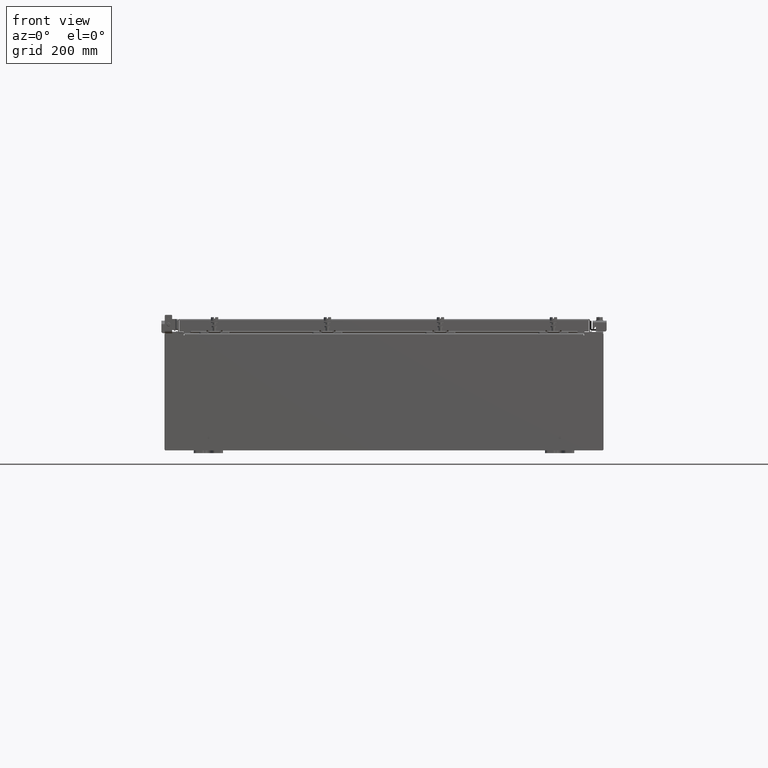
[diagram: clean part render]
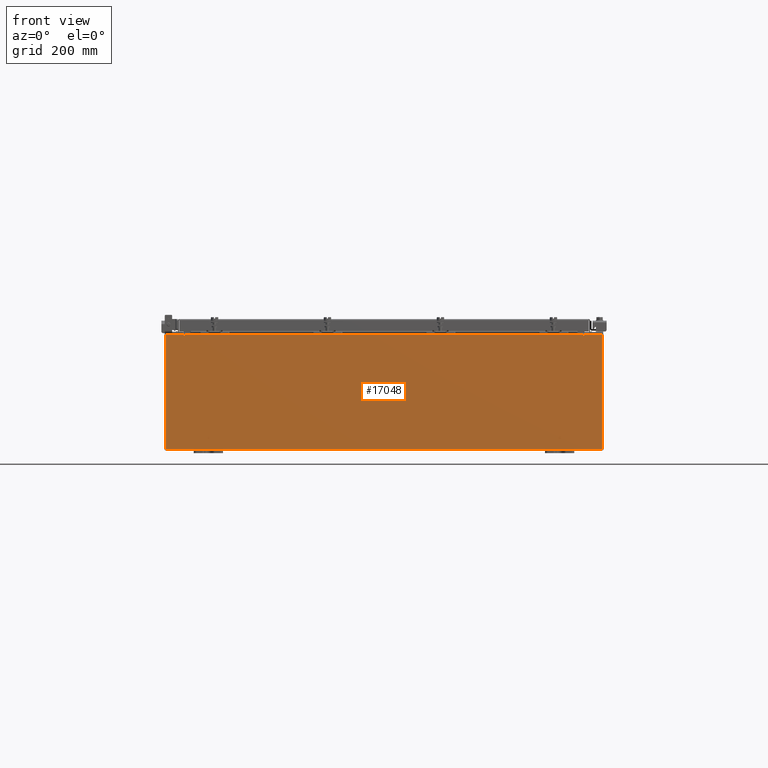
[diagram: same view with one face highlighted and labeled with its STEP entity id]
A machine part, front view. The second image highlights one B-rep face of the part: STEP entity #17048.
In plain terms, the highlighted planar face has unit normal (0, 1, -0).
Its self-contained STEP definition (entity closure, byte-faithful):
#305 = DIRECTION ( 'NONE',  ( 1.000000000000000000, 5.376446204297056400E-017, 1.665334536937734800E-016 ) ) ;
#422 = CIRCLE ( 'NONE', #21617, 0.01867499999999949400 ) ;
#449 = ORIENTED_EDGE ( 'NONE', *, *, #4674, .T. ) ;
#537 = LINE ( 'NONE', #17800, #15061 ) ;
#1232 = DIRECTION ( 'NONE',  ( -4.357226125769382300E-014, 3.355183535620637000E-017, -1.000000000000000000 ) ) ;
#1581 = VECTOR ( 'NONE', #17354, 39.37007874015748100 ) ;
#1975 = ORIENTED_EDGE ( 'NONE', *, *, #9718, .F. ) ;
#1996 = VECTOR ( 'NONE', #17200, 39.37007874015748100 ) ;
#2044 = DIRECTION ( 'NONE',  ( 5.376446204297056400E-017, 1.000000000000000000, -3.355183535620870000E-017 ) ) ;
#2347 = VERTEX_POINT ( 'NONE', #21181 ) ;
#2496 = LINE ( 'NONE', #11623, #11954 ) ;
#2510 = CARTESIAN_POINT ( 'NONE',  ( 13.63720000000000400, 0.0000000000000000000, 3.874950000000001900 ) ) ;
#3250 = CARTESIAN_POINT ( 'NONE',  ( -13.63719999999999600, 0.0000000000000000000, 3.874949999999997500 ) ) ;
#3766 = EDGE_CURVE ( 'NONE', #12182, #20559, #11975, .T. ) ;
#3948 = DIRECTION ( 'NONE',  ( -1.665334536937734800E-016, 3.355183535620870000E-017, -1.000000000000000000 ) ) ;
#3970 = CARTESIAN_POINT ( 'NONE',  ( 13.63720000000000400, 0.0000000000000000000, 1.639108796198557900E-015 ) ) ;
#3978 = VECTOR ( 'NONE', #3948, 39.37007874015748100 ) ;
#4128 = CARTESIAN_POINT ( 'NONE',  ( 14.92530000000000200, 0.0000000000000000000, 3.925300000000001800 ) ) ;
#4161 = LINE ( 'NONE', #7021, #11835 ) ;
#4238 = EDGE_CURVE ( 'NONE', #19336, #19671, #2496, .T. ) ;
#4674 = EDGE_CURVE ( 'NONE', #13302, #5848, #18765, .T. ) ;
#4871 = DIRECTION ( 'NONE',  ( -5.376446204297057600E-017, -1.000000000000000000, -3.355183535620869400E-017 ) ) ;
#5150 = CARTESIAN_POINT ( 'NONE',  ( -14.92529999999999800, 0.0000000000000000000, 3.925299999999997800 ) ) ;
#5669 = VECTOR ( 'NONE', #21916, 39.37007874015748100 ) ;
#5848 = VERTEX_POINT ( 'NONE', #16299 ) ;
#6133 = CARTESIAN_POINT ( 'NONE',  ( 14.92530000000000200, 0.0000000000000000000, -3.925299999999996900 ) ) ;
#6248 = DIRECTION ( 'NONE',  ( 1.000000000000000000, 5.376446204297056400E-017, 1.665334536937734800E-016 ) ) ;
#7021 = CARTESIAN_POINT ( 'NONE',  ( 13.67454999999983300, 0.0000000000000000000, -5.911719058289465700E-013 ) ) ;
#7117 = VERTEX_POINT ( 'NONE', #3250 ) ;
#7813 = ORIENTED_EDGE ( 'NONE', *, *, #15210, .T. ) ;
#7950 = ORIENTED_EDGE ( 'NONE', *, *, #11029, .F. ) ;
#8235 = CARTESIAN_POINT ( 'NONE',  ( -13.65587499999999600, 0.0000000000000000000, 3.874949999999997500 ) ) ;
#8236 = ORIENTED_EDGE ( 'NONE', *, *, #16728, .F. ) ;
#8328 = CARTESIAN_POINT ( 'NONE',  ( 13.65587500000000200, 0.0000000000000000000, 3.874950000000001900 ) ) ;
#8567 = CARTESIAN_POINT ( 'NONE',  ( -13.63719999999999600, 0.0000000000000000000, 3.912299999999997400 ) ) ;
#9318 = ORIENTED_EDGE ( 'NONE', *, *, #19740, .T. ) ;
#9594 = DIRECTION ( 'NONE',  ( 0.0000000000000000000, 3.355183535620870000E-017, -1.000000000000000000 ) ) ;
#9718 = EDGE_CURVE ( 'NONE', #23781, #12182, #4161, .T. ) ;
#9747 = VERTEX_POINT ( 'NONE', #22131 ) ;
#9769 = CARTESIAN_POINT ( 'NONE',  ( 13.67455000000000400, 0.0000000000000000000, 3.925300000000001800 ) ) ;
#10124 = DIRECTION ( 'NONE',  ( 0.0000000000000000000, 3.355183535620870000E-017, -1.000000000000000000 ) ) ;
#10479 = CARTESIAN_POINT ( 'NONE',  ( 0.0000000000000000000, 0.0000000000000000000, 0.0000000000000000000 ) ) ;
#10584 = CARTESIAN_POINT ( 'NONE',  ( -13.67454999999999500, 0.0000000000000000000, -2.731847993664263200E-015 ) ) ;
#10776 = CARTESIAN_POINT ( 'NONE',  ( 13.67455000000000200, 0.0000000000000000000, 3.874950000000001900 ) ) ;
#10778 = EDGE_LOOP ( 'NONE', ( #7950, #19917, #22525, #20871, #8236, #14805, #1975, #11351, #9318, #13644, #449, #7813 ) ) ;
#11029 = EDGE_CURVE ( 'NONE', #9747, #14965, #15771, .T. ) ;
#11030 = LINE ( 'NONE', #4128, #1581 ) ;
#11133 = VECTOR ( 'NONE', #6248, 39.37007874015748100 ) ;
#11351 = ORIENTED_EDGE ( 'NONE', *, *, #12755, .T. ) ;
#11623 = CARTESIAN_POINT ( 'NONE',  ( -13.63719999999999800, 0.0000000000000000000, 3.912299999999997400 ) ) ;
#11835 = VECTOR ( 'NONE', #1232, 39.37007874015748100 ) ;
#11954 = VECTOR ( 'NONE', #305, 39.37007874015748100 ) ;
#11975 = CIRCLE ( 'NONE', #24039, 0.01867499999999949400 ) ;
#12147 = CARTESIAN_POINT ( 'NONE',  ( -14.92529999999999800, 0.0000000000000000000, -3.925300000000002700 ) ) ;
#12182 = VERTEX_POINT ( 'NONE', #10776 ) ;
#12380 = PLANE ( 'NONE',  #16681 ) ;
#12755 = EDGE_CURVE ( 'NONE', #23781, #2347, #15683, .T. ) ;
#13291 = EDGE_CURVE ( 'NONE', #15868, #13302, #537, .T. ) ;
#13302 = VERTEX_POINT ( 'NONE', #12147 ) ;
#13366 = CARTESIAN_POINT ( 'NONE',  ( -13.63719999999999600, 0.0000000000000000000, -2.185478394931410600E-015 ) ) ;
#13644 = ORIENTED_EDGE ( 'NONE', *, *, #13291, .T. ) ;
#13717 = VECTOR ( 'NONE', #20549, 39.37007874015748100 ) ;
#14590 = DIRECTION ( 'NONE',  ( 1.000000000000000000, 5.376446204297056400E-017, 1.665334536937734800E-016 ) ) ;
#14805 = ORIENTED_EDGE ( 'NONE', *, *, #3766, .F. ) ;
#14965 = VERTEX_POINT ( 'NONE', #16474 ) ;
#15061 = VECTOR ( 'NONE', #15904, 39.37007874015748100 ) ;
#15082 = VECTOR ( 'NONE', #14590, 39.37007874015748100 ) ;
#15210 = EDGE_CURVE ( 'NONE', #5848, #14965, #21208, .T. ) ;
#15645 = FACE_OUTER_BOUND ( 'NONE', #10778, .T. ) ;
#15683 = LINE ( 'NONE', #5150, #15082 ) ;
#15771 = LINE ( 'NONE', #10584, #5669 ) ;
#15868 = VERTEX_POINT ( 'NONE', #6133 ) ;
#15904 = DIRECTION ( 'NONE',  ( -1.000000000000000000, -5.376446204297056400E-017, -1.665334536937734800E-016 ) ) ;
#16299 = CARTESIAN_POINT ( 'NONE',  ( -14.92529999999999800, 0.0000000000000000000, 3.925299999999997800 ) ) ;
#16474 = CARTESIAN_POINT ( 'NONE',  ( -13.67454999999999500, 0.0000000000000000000, 3.925299999999997800 ) ) ;
#16524 = LINE ( 'NONE', #3970, #1996 ) ;
#16681 = AXIS2_PLACEMENT_3D ( 'NONE', #10479, #4871, #18108 ) ;
#16728 = EDGE_CURVE ( 'NONE', #20559, #19671, #16524, .T. ) ;
#17048 = ADVANCED_FACE ( 'NONE', ( #15645 ), #12380, .F. ) ;
#17200 = DIRECTION ( 'NONE',  ( 1.665334536937734800E-016, -3.355183535620870000E-017, 1.000000000000000000 ) ) ;
#17354 = DIRECTION ( 'NONE',  ( -1.665334536937734800E-016, 3.355183535620870000E-017, -1.000000000000000000 ) ) ;
#17584 = CARTESIAN_POINT ( 'NONE',  ( -14.92529999999999800, 0.0000000000000000000, 3.925299999999997800 ) ) ;
#17800 = CARTESIAN_POINT ( 'NONE',  ( -14.92529999999999800, 0.0000000000000000000, -3.925300000000002700 ) ) ;
#18108 = DIRECTION ( 'NONE',  ( -1.665334536937734800E-016, 3.355183535620870000E-017, -1.000000000000000000 ) ) ;
#18765 = LINE ( 'NONE', #22007, #13717 ) ;
#19336 = VERTEX_POINT ( 'NONE', #8567 ) ;
#19668 = LINE ( 'NONE', #13366, #3978 ) ;
#19671 = VERTEX_POINT ( 'NONE', #20680 ) ;
#19740 = EDGE_CURVE ( 'NONE', #2347, #15868, #11030, .T. ) ;
#19917 = ORIENTED_EDGE ( 'NONE', *, *, #20550, .F. ) ;
#20549 = DIRECTION ( 'NONE',  ( 1.665334536937734800E-016, -3.355183535620870000E-017, 1.000000000000000000 ) ) ;
#20550 = EDGE_CURVE ( 'NONE', #7117, #9747, #422, .T. ) ;
#20559 = VERTEX_POINT ( 'NONE', #2510 ) ;
#20680 = CARTESIAN_POINT ( 'NONE',  ( 13.63720000000000400, 0.0000000000000000000, 3.912300000000001900 ) ) ;
#20871 = ORIENTED_EDGE ( 'NONE', *, *, #4238, .T. ) ;
#21181 = CARTESIAN_POINT ( 'NONE',  ( 14.92530000000000200, 0.0000000000000000000, 3.925300000000001800 ) ) ;
#21208 = LINE ( 'NONE', #17584, #11133 ) ;
#21429 = DIRECTION ( 'NONE',  ( 5.376446204297056400E-017, 1.000000000000000000, -3.355183535620870000E-017 ) ) ;
#21617 = AXIS2_PLACEMENT_3D ( 'NONE', #8235, #21429, #10124 ) ;
#21916 = DIRECTION ( 'NONE',  ( 1.665334536937734800E-016, -3.355183535620870000E-017, 1.000000000000000000 ) ) ;
#22007 = CARTESIAN_POINT ( 'NONE',  ( -14.92529999999999800, 0.0000000000000000000, 3.925299999999997800 ) ) ;
#22131 = CARTESIAN_POINT ( 'NONE',  ( -13.67454999999999500, 0.0000000000000000000, 3.874949999999997500 ) ) ;
#22525 = ORIENTED_EDGE ( 'NONE', *, *, #24324, .F. ) ;
#23781 = VERTEX_POINT ( 'NONE', #9769 ) ;
#24039 = AXIS2_PLACEMENT_3D ( 'NONE', #8328, #2044, #9594 ) ;
#24324 = EDGE_CURVE ( 'NONE', #19336, #7117, #19668, .T. ) ;